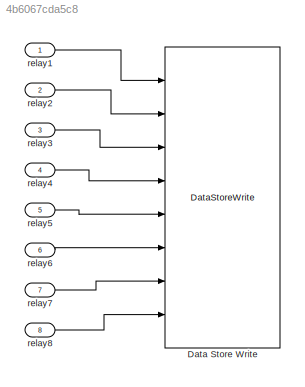
MODEL slx_4b6067cda5c8
KIND model
BLOCK [DataStoreWrite] Data Store Write
  DataStoreElements = sys_regs.inputs(201)#sys_regs.inputs(202)#sys_regs.inputs(203)#sys_regs.inputs(204)#sys_regs.inputs(205)#sys_regs.inputs(206)#sys_regs.inputs(207)#sys_regs.inputs(208)
  DataStoreName = sys_regs
  IndexOptions = Index vector (dialog)
  Indices = 1
  OutputSizes = 1
  Ports = [8]
BLOCK [Inport] relay1
  OutDataTypeStr = int16
BLOCK [Inport] relay2
  OutDataTypeStr = int16
  Port = 2
BLOCK [Inport] relay3
  OutDataTypeStr = int16
  Port = 3
BLOCK [Inport] relay4
  OutDataTypeStr = int16
  Port = 4
BLOCK [Inport] relay5
  OutDataTypeStr = int16
  Port = 5
BLOCK [Inport] relay6
  OutDataTypeStr = int16
  Port = 6
BLOCK [Inport] relay7
  OutDataTypeStr = int16
  Port = 7
BLOCK [Inport] relay8
  OutDataTypeStr = int16
  Port = 8
LINE relay1:1 -> Data Store Write:1
LINE relay2:1 -> Data Store Write:2
LINE relay3:1 -> Data Store Write:3
LINE relay4:1 -> Data Store Write:4
LINE relay5:1 -> Data Store Write:5
LINE relay6:1 -> Data Store Write:6
LINE relay7:1 -> Data Store Write:7
LINE relay8:1 -> Data Store Write:8
